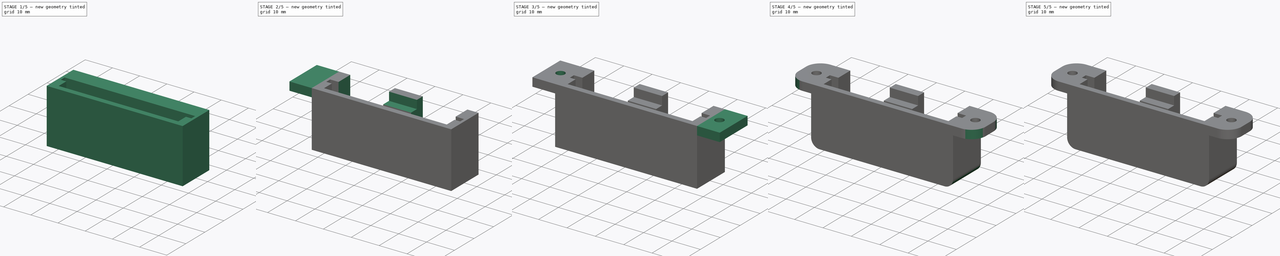
[diagram: build sequence overview — one tinted view per stage of 5, left to right]
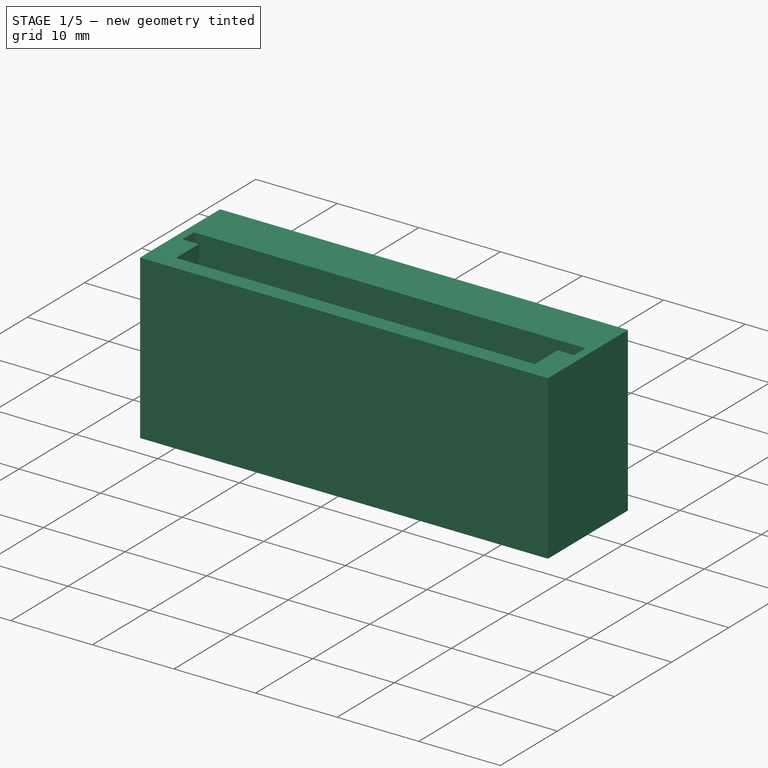
[diagram: stage 1 of 5 — iso view after this stage's code; geometry added in this stage tinted green]
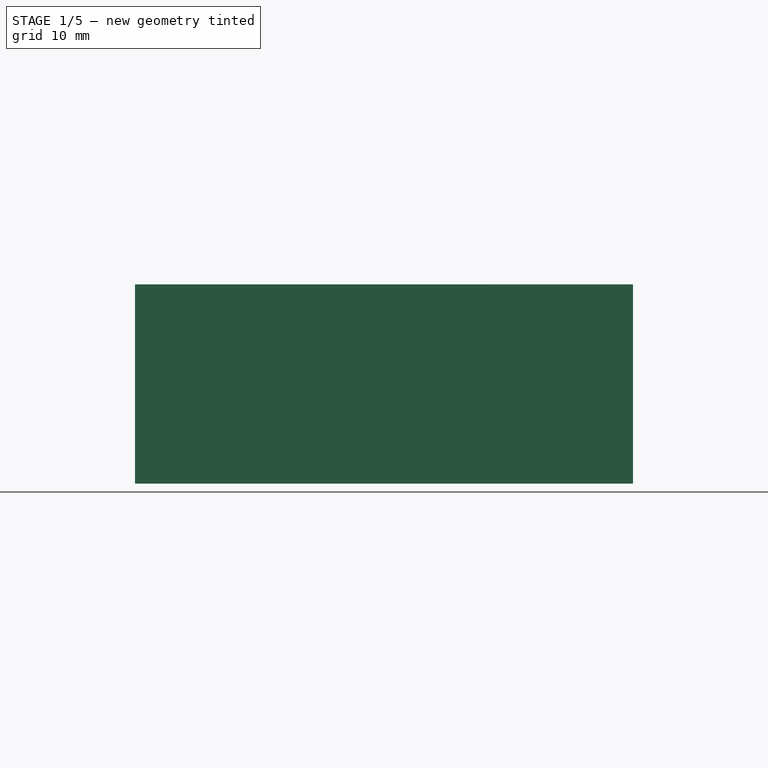
[diagram: stage 1 of 5 — front view after this stage's code; geometry added in this stage tinted green]
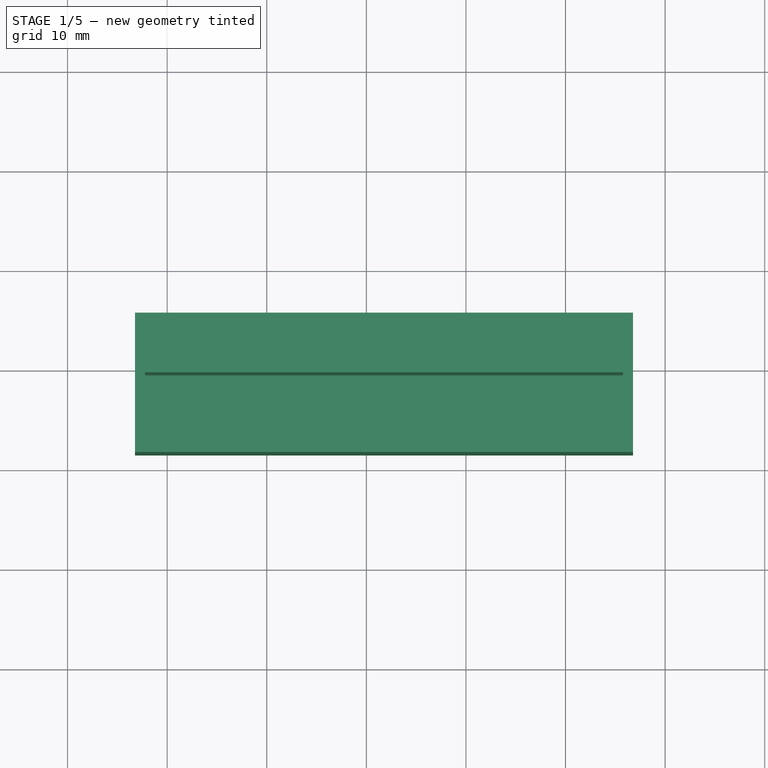
[diagram: stage 1 of 5 — top view after this stage's code; geometry added in this stage tinted green]
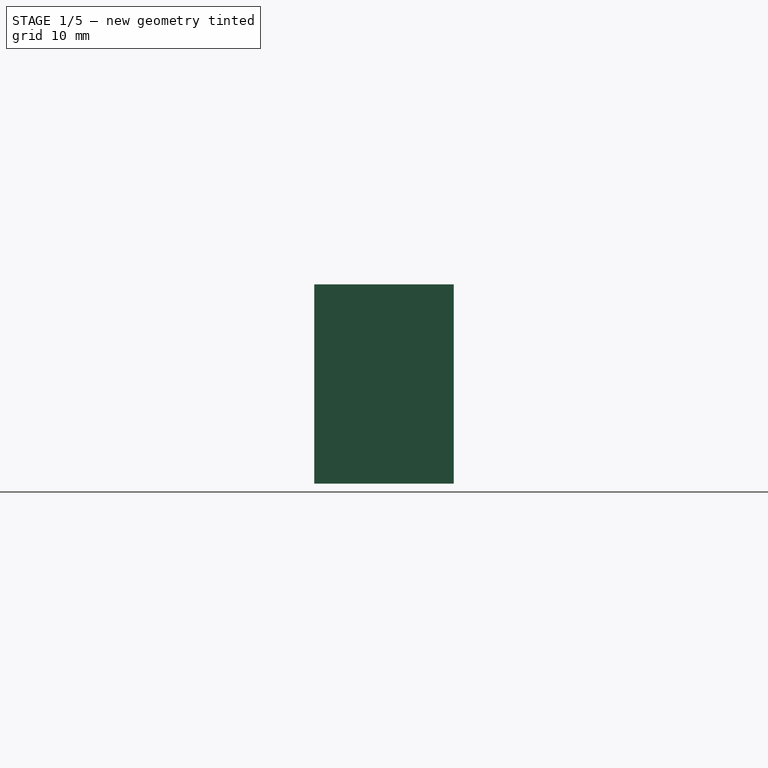
[diagram: stage 1 of 5 — right view after this stage's code; geometry added in this stage tinted green]
FCSTD DOCUMENT  (FreeCAD 0.18R16131 (Git))
Label: UltraHolder
License: All rights reserved
LicenseURL: http://en.wikipedia.org/wiki/All_rights_reserved
objects: Sketcher::SketchObject×9, PartDesign::Pocket×7, PartDesign::Fillet×6, PartDesign::Pad×3, PartDesign::Body×1
note: 36 computed .brp shape members not serialized (recipe doc carries the construction recipe); baked Part::Feature solids carry a one-line shape summary decoded from their .brp

FEATURE [Sketcher::SketchObject] Sketch
  MapMode = 5
  Support = -> [XY_Plane]
  sketch-geometry (4):
    g0: LineSegment StartX=-23.2268 StartY=15.5177 StartZ=0 EndX=26.7732 EndY=15.5177 EndZ=0
    g1: LineSegment StartX=26.7732 StartY=15.5177 StartZ=0 EndX=26.7732 EndY=1.51767 EndZ=0
    g2: LineSegment StartX=26.7732 StartY=1.51767 StartZ=0 EndX=-23.2268 EndY=1.51767 EndZ=0
    g3: LineSegment StartX=-23.2268 StartY=1.51767 StartZ=0 EndX=-23.2268 EndY=15.5177 EndZ=0
  constraints (10):
    c: Coincident(g0,g1)
    c: Coincident(g1,g2)
    c: Coincident(g2,g3)
    c: Coincident(g3,g0)
    c: Horizontal(g0)
    c: Horizontal(g2)
    c: Vertical(g1)
    c: Vertical(g3)
    c: DistanceX(g0,g0) = 50
    c: DistanceY(g3,g3) = 14
FEATURE [PartDesign::Pad] Pad
  Length = 20
  Length2 = 100
  Profile = -> Sketch
  Type = 0
FEATURE [Sketcher::SketchObject] Sketch001
  ExternalGeometry = -> [Pad]
  MapMode = 5
  Placement = pos=(0,0,20) rot=(0,0,1;0rad)
  Support = -> [Pad]
  sketch-geometry (4):
    g0: LineSegment StartX=-22.2268 StartY=9.51767 StartZ=0 EndX=25.7732 EndY=9.51767 EndZ=0
    g1: LineSegment StartX=25.7732 StartY=9.51767 StartZ=0 EndX=25.7732 EndY=7.51767 EndZ=0
    g2: LineSegment StartX=25.7732 StartY=7.51767 StartZ=0 EndX=-22.2268 EndY=7.51767 EndZ=0
    g3: LineSegment StartX=-22.2268 StartY=7.51767 StartZ=0 EndX=-22.2268 EndY=9.51767 EndZ=0
  constraints (12):
    c: Coincident(g0,g1)
    c: Coincident(g1,g2)
    c: Coincident(g2,g3)
    c: Coincident(g3,g0)
    c: Horizontal(g0)
    c: Horizontal(g2)
    c: Vertical(g1)
    c: Vertical(g3)
    c: DistanceX(g-5,g2) = 1
    c: DistanceX(g1,g-5) = 1
    c: DistanceY(g-5,g2) = 6
    c: DistanceY(g3,g3) = 2
FEATURE [PartDesign::Pocket] Pocket
  BaseFeature = -> Pad
  Length = 18
  Length2 = 100
  Profile = -> Sketch001
  Type = 0
FEATURE [Sketcher::SketchObject] Sketch002
  ExternalGeometry = -> [Pocket]
  MapMode = 5
  Placement = pos=(0,0,20) rot=(0,0,1;0rad)
  Support = -> [Pocket]
  sketch-geometry (4):
    g0: LineSegment StartX=-20.2268 StartY=7.51767 StartZ=0 EndX=23.7732 EndY=7.51767 EndZ=0
    g1: LineSegment StartX=23.7732 StartY=7.51767 StartZ=0 EndX=23.7732 EndY=3.51767 EndZ=0
    g2: LineSegment StartX=23.7732 StartY=3.51767 StartZ=0 EndX=-20.2268 EndY=3.51767 EndZ=0
    g3: LineSegment StartX=-20.2268 StartY=3.51767 StartZ=0 EndX=-20.2268 EndY=7.51767 EndZ=0
  constraints (12):
    c: Coincident(g0,g1)
    c: Coincident(g1,g2)
    c: Coincident(g2,g3)
    c: Coincident(g3,g0)
    c: Horizontal(g0)
    c: Horizontal(g2)
    c: Vertical(g1)
    c: Vertical(g3)
    c: PointOnObject(g0,g-3)
    c: DistanceX(g-3,g0) = 2
    c: DistanceX(g0,g-3) = 2
    c: DistanceY(g1,g1) = 4
FEATURE [PartDesign::Pocket] Pocket001
  BaseFeature = -> Pocket
  Length = 16
  Length2 = 100
  Profile = -> Sketch002
  Type = 0
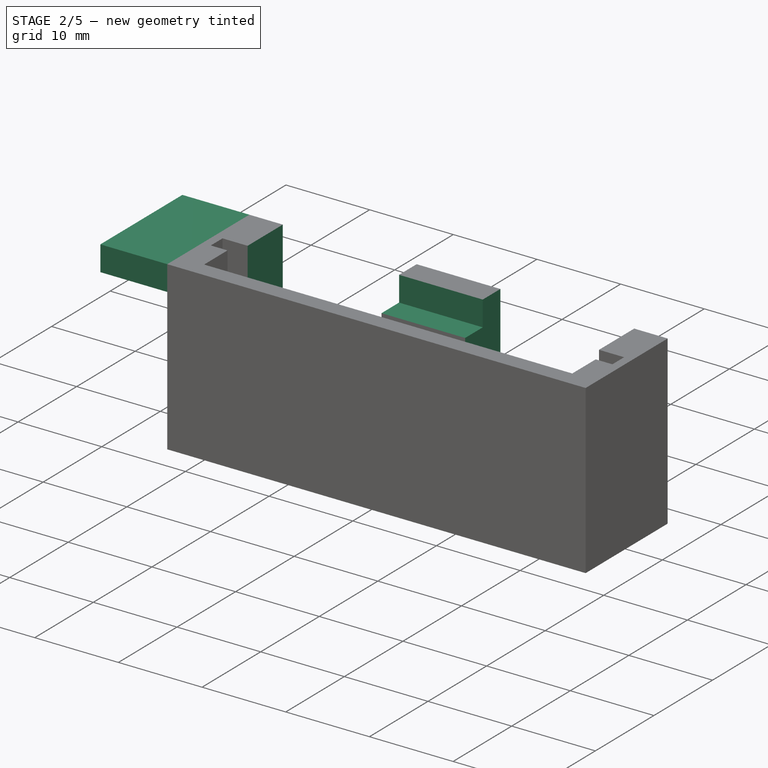
[diagram: stage 2 of 5 — iso view after this stage's code; geometry added in this stage tinted green]
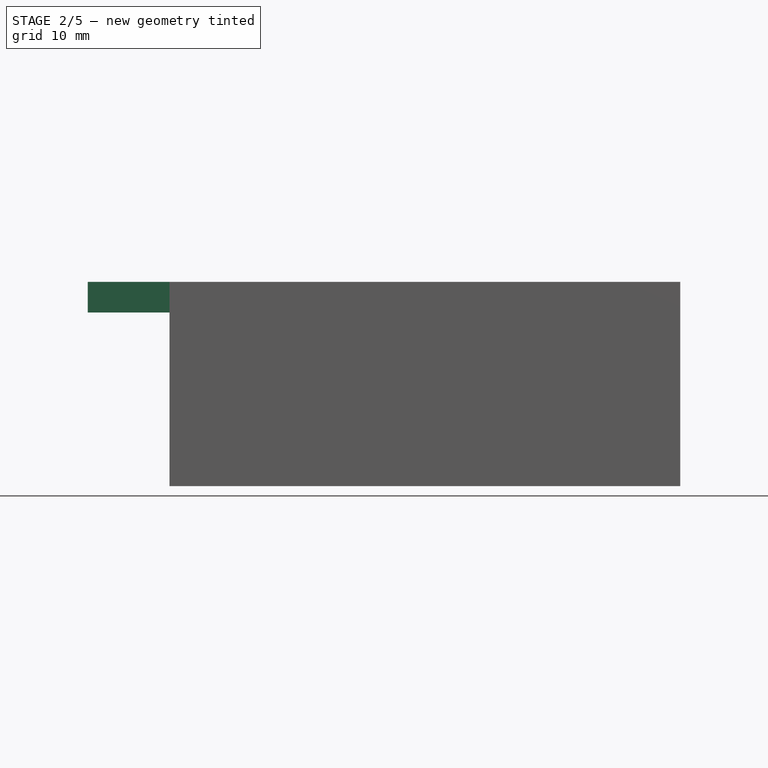
[diagram: stage 2 of 5 — front view after this stage's code; geometry added in this stage tinted green]
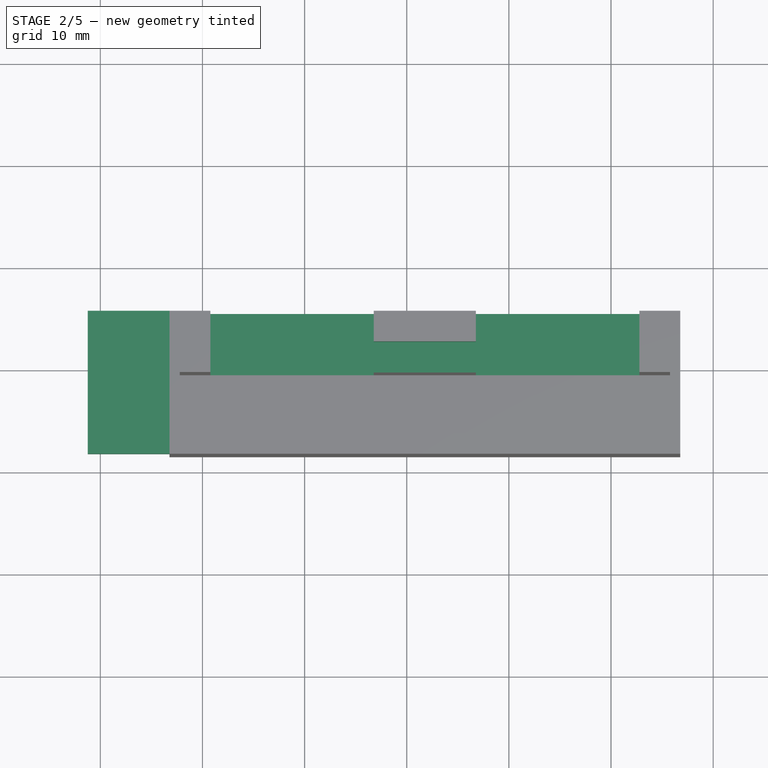
[diagram: stage 2 of 5 — top view after this stage's code; geometry added in this stage tinted green]
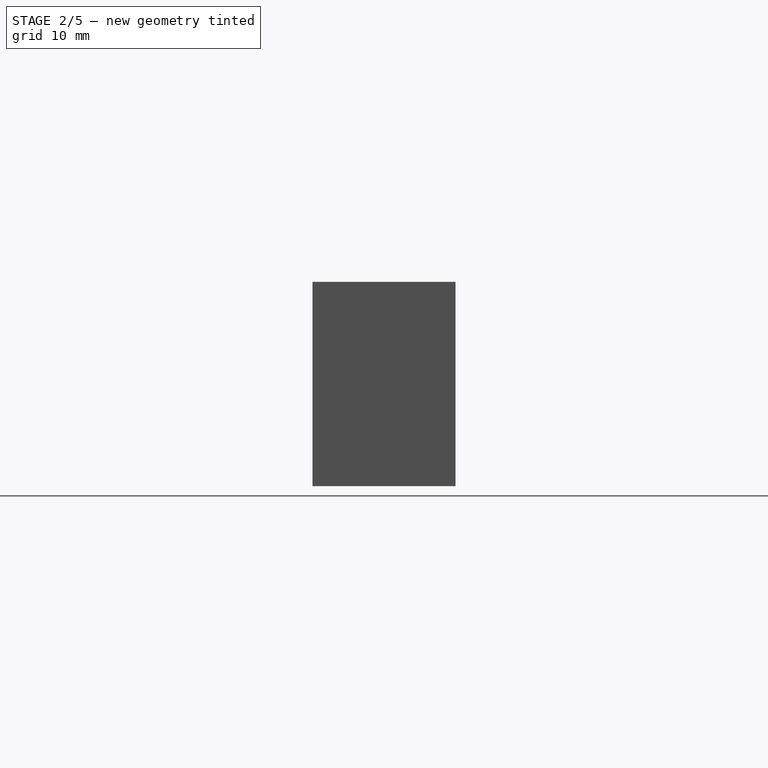
[diagram: stage 2 of 5 — right view after this stage's code; geometry added in this stage tinted green]
FEATURE [Sketcher::SketchObject] Sketch003
  ExternalGeometry = -> [Pocket001]
  MapMode = 5
  Placement = pos=(0,0,20) rot=(0,0,1;0rad)
  Support = -> [Pocket001]
  sketch-geometry (8):
    g0: LineSegment StartX=-19.2268 StartY=15.5177 StartZ=0 EndX=-3.22679 EndY=15.5177 EndZ=0
    g1: LineSegment StartX=-3.22679 StartY=15.5177 StartZ=0 EndX=-3.22679 EndY=9.51767 EndZ=0
    g2: LineSegment StartX=-3.22679 StartY=9.51767 StartZ=0 EndX=-19.2268 EndY=9.51767 EndZ=0
    g3: LineSegment StartX=-19.2268 StartY=9.51767 StartZ=0 EndX=-19.2268 EndY=15.5177 EndZ=0
    g4: LineSegment StartX=6.77321 StartY=15.5177 StartZ=0 EndX=22.7732 EndY=15.5177 EndZ=0
    g5: LineSegment StartX=22.7732 StartY=15.5177 StartZ=0 EndX=22.7732 EndY=9.51767 EndZ=0
    g6: LineSegment StartX=22.7732 StartY=9.51767 StartZ=0 EndX=6.77321 EndY=9.51767 EndZ=0
    g7: LineSegment StartX=6.77321 StartY=9.51767 StartZ=0 EndX=6.77321 EndY=15.5177 EndZ=0
  constraints (24):
    c: Coincident(g0,g1)
    c: Coincident(g1,g2)
    c: Coincident(g2,g3)
    c: Coincident(g3,g0)
    c: Horizontal(g0)
    c: Horizontal(g2)
    c: Vertical(g1)
    c: Vertical(g3)
    c: Coincident(g4,g5)
    c: Coincident(g5,g6)
    c: Coincident(g6,g7)
    c: Coincident(g7,g4)
    c: Horizontal(g4)
    c: Horizontal(g6)
    c: Vertical(g5)
    c: Vertical(g7)
    c: PointOnObject(g0,g-3)
    c: PointOnObject(g2,g-4)
    c: PointOnObject(g4,g-3)
    c: PointOnObject(g6,g-4)
    c: DistanceX(g1,g6) = 10
    c: DistanceX(g2,g2) = 16
    c: DistanceX(g6,g5) = 16
    c: DistanceX(g5,g-4) = 3
FEATURE [PartDesign::Pocket] Pocket002
  BaseFeature = -> Pocket001
  Length = 18
  Length2 = 100
  Profile = -> Sketch003
  Type = 0
FEATURE [Sketcher::SketchObject] Sketch004
  ExternalGeometry = -> [Pocket002]
  MapMode = 5
  Placement = pos=(0,0,20) rot=(0,0,1;0rad)
  Support = -> [Pocket002]
  sketch-geometry (4):
    g0: LineSegment StartX=-3.22679 StartY=12.5177 StartZ=0 EndX=6.77321 EndY=12.5177 EndZ=0
    g1: LineSegment StartX=6.77321 StartY=12.5177 StartZ=0 EndX=6.77321 EndY=9.51767 EndZ=0
    g2: LineSegment StartX=6.77321 StartY=9.51767 StartZ=0 EndX=-3.22679 EndY=9.51767 EndZ=0
    g3: LineSegment StartX=-3.22679 StartY=9.51767 StartZ=0 EndX=-3.22679 EndY=12.5177 EndZ=0
  constraints (10):
    c: Coincident(g0,g1)
    c: Coincident(g1,g2)
    c: Coincident(g2,g3)
    c: Coincident(g3,g0)
    c: Horizontal(g0)
    c: Vertical(g1)
    c: Vertical(g3)
    c: Coincident(g2,g-6)
    c: Coincident(g1,g-5)
    c: DistanceY(g1,g1) = 3
FEATURE [PartDesign::Pocket] Pocket003
  BaseFeature = -> Pocket002
  Length = 3
  Length2 = 100
  Profile = -> Sketch004
  Type = 0
FEATURE [Sketcher::SketchObject] Sketch005
  ExternalGeometry = -> [Pocket003]
  MapMode = 5
  Placement = pos=(-23.2268,0,0) rot=(0.57735,-0.57735,-0.57735;2.0944rad)
  Support = -> [Pocket003]
  sketch-geometry (4):
    g0: LineSegment StartX=-15.5177 StartY=20 StartZ=0 EndX=-1.51767 EndY=20 EndZ=0
    g1: LineSegment StartX=-1.51767 StartY=20 StartZ=0 EndX=-1.51767 EndY=17 EndZ=0
    g2: LineSegment StartX=-1.51767 StartY=17 StartZ=0 EndX=-15.5177 EndY=17 EndZ=0
    g3: LineSegment StartX=-15.5177 StartY=17 StartZ=0 EndX=-15.5177 EndY=20 EndZ=0
  constraints (10):
    c: Coincident(g0,g1)
    c: Coincident(g1,g2)
    c: Coincident(g2,g3)
    c: Coincident(g3,g0)
    c: Horizontal(g2)
    c: Vertical(g1)
    c: Vertical(g3)
    c: Coincident(g0,g-4)
    c: Coincident(g0,g-5)
    c: DistanceY(g3,g3) = 3
FEATURE [PartDesign::Pad] Pad001
  BaseFeature = -> Pocket003
  Length = 8
  Length2 = 100
  Profile = -> Sketch005
  Type = 0
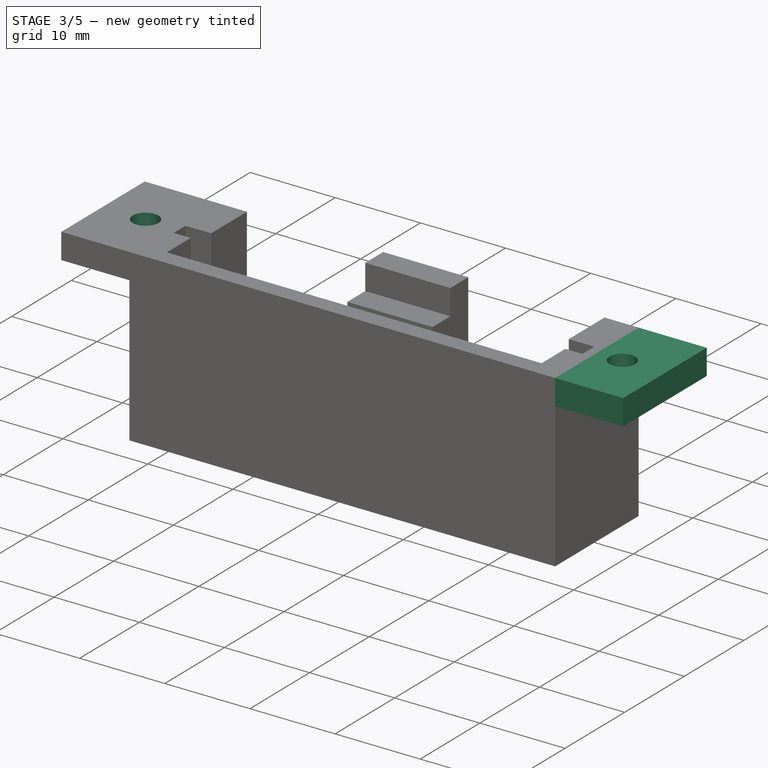
[diagram: stage 3 of 5 — iso view after this stage's code; geometry added in this stage tinted green]
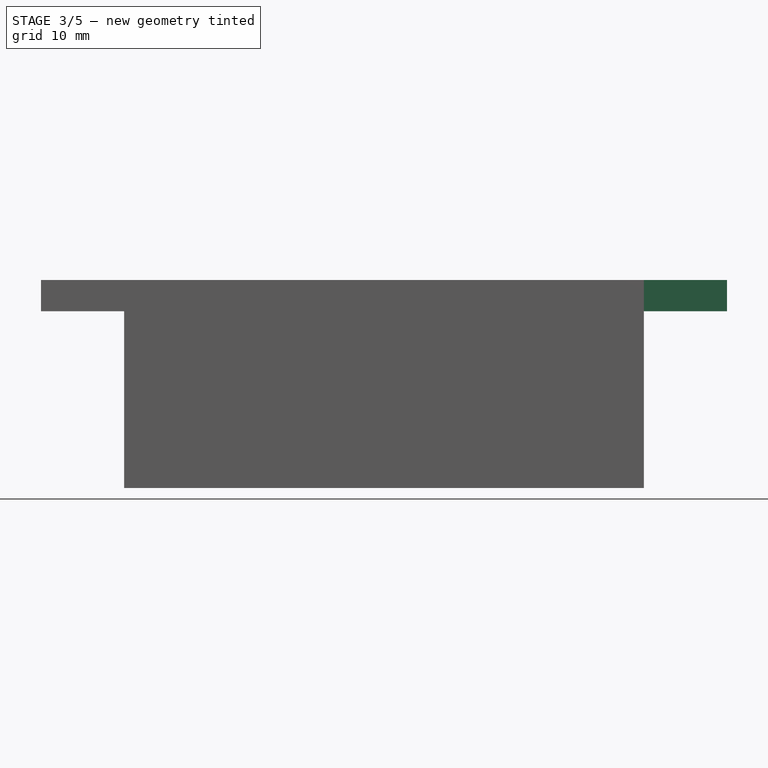
[diagram: stage 3 of 5 — front view after this stage's code; geometry added in this stage tinted green]
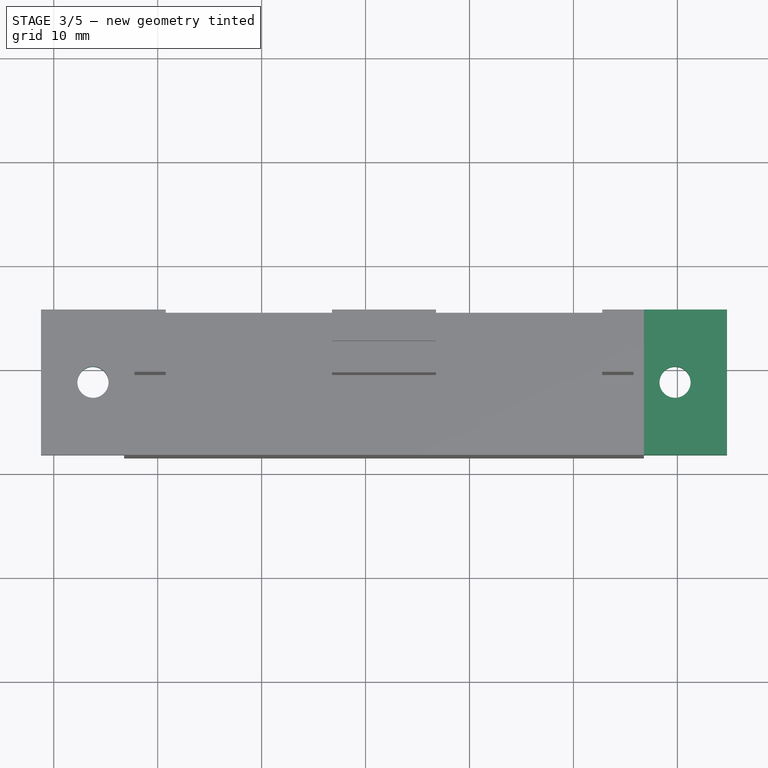
[diagram: stage 3 of 5 — top view after this stage's code; geometry added in this stage tinted green]
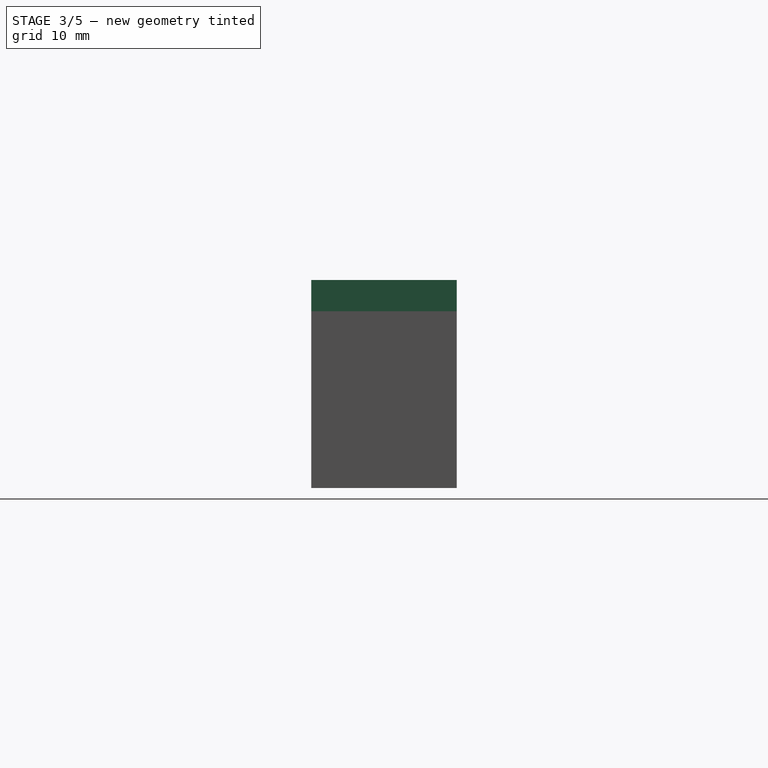
[diagram: stage 3 of 5 — right view after this stage's code; geometry added in this stage tinted green]
FEATURE [Sketcher::SketchObject] Sketch006
  ExternalGeometry = -> [Pad001]
  MapMode = 5
  Placement = pos=(26.7732,0,0) rot=(0.57735,0.57735,0.57735;2.0944rad)
  Support = -> [Pad001]
  sketch-geometry (4):
    g0: LineSegment StartX=1.51767 StartY=20 StartZ=0 EndX=15.5177 EndY=20 EndZ=0
    g1: LineSegment StartX=15.5177 StartY=20 StartZ=0 EndX=15.5177 EndY=17 EndZ=0
    g2: LineSegment StartX=15.5177 StartY=17 StartZ=0 EndX=1.51767 EndY=17 EndZ=0
    g3: LineSegment StartX=1.51767 StartY=17 StartZ=0 EndX=1.51767 EndY=20 EndZ=0
  constraints (10):
    c: Coincident(g0,g1)
    c: Coincident(g1,g2)
    c: Coincident(g2,g3)
    c: Coincident(g3,g0)
    c: Horizontal(g2)
    c: Vertical(g1)
    c: Vertical(g3)
    c: Coincident(g0,g-4)
    c: Coincident(g0,g-3)
    c: DistanceY(g1,g1) = 3
FEATURE [PartDesign::Pad] Pad002
  BaseFeature = -> Pad001
  Length = 8
  Length2 = 100
  Profile = -> Sketch006
  Type = 0
FEATURE [Sketcher::SketchObject] Sketch007
  ExternalGeometry = -> [Pad002]
  MapMode = 5
  Placement = pos=(0,0,17) rot=(1,0,0;3.14159rad)
  Support = -> [Pad002]
  sketch-geometry (1):
    g0: Circle CenterX=-26.2268 CenterY=-8.51767 CenterZ=0 NormalX=0 NormalY=0 NormalZ=1 AngleXU=0 Radius=1.5
  constraints (3):
    c: DistanceX(g0,g-3) = 4
    c: Radius(g0) = 1.5
    c: DistanceY(g-4,g0) = 7
FEATURE [PartDesign::Pocket] Pocket004
  BaseFeature = -> Pad002
  Length = 3
  Length2 = 100
  Profile = -> Sketch007
  Type = 0
FEATURE [PartDesign::Pocket] Pocket005
  BaseFeature = -> Pocket004
  Length = 3
  Length2 = 100
  Profile = -> Sketch007
  Type = 0
FEATURE [Sketcher::SketchObject] Sketch008
  ExternalGeometry = -> [Pocket005]
  MapMode = 5
  Placement = pos=(0,0,20) rot=(0,0,1;0rad)
  Support = -> [Pocket005]
  sketch-geometry (1):
    g0: Circle CenterX=29.7732 CenterY=8.51767 CenterZ=0 NormalX=0 NormalY=0 NormalZ=1 AngleXU=0 Radius=1.5
  constraints (3):
    c: Radius(g0) = 1.5
    c: DistanceX(g-3,g0) = 4
    c: DistanceY(g-4,g0) = 7
FEATURE [PartDesign::Pocket] Pocket006
  BaseFeature = -> Pocket005
  Length = 3
  Length2 = 100
  Profile = -> Sketch008
  Type = 0
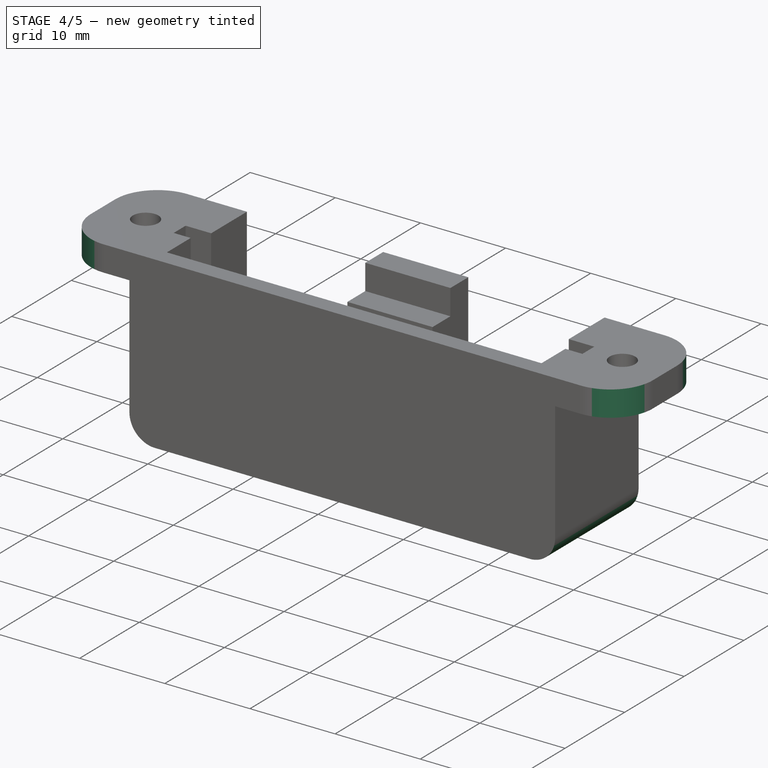
[diagram: stage 4 of 5 — iso view after this stage's code; geometry added in this stage tinted green]
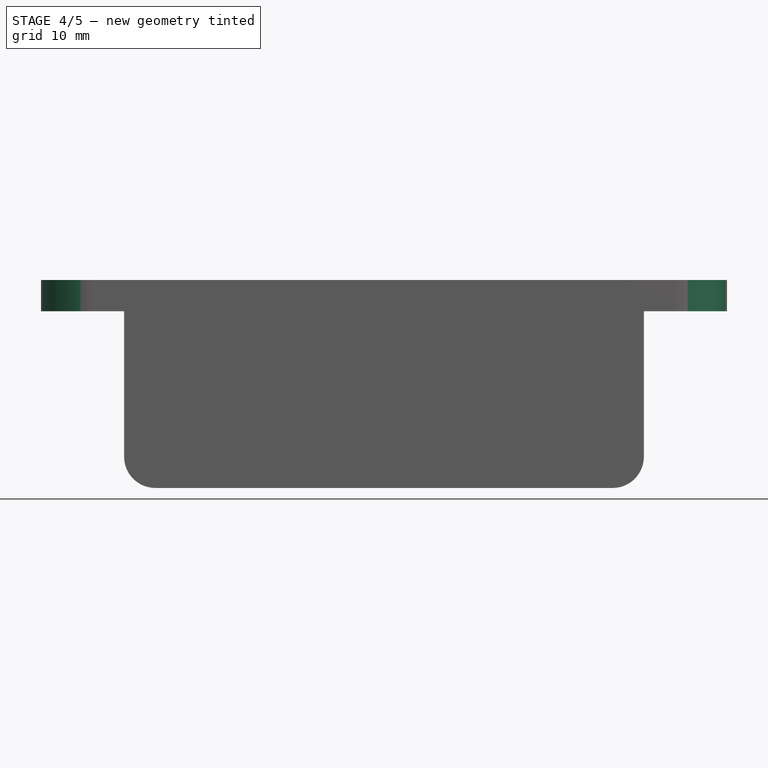
[diagram: stage 4 of 5 — front view after this stage's code; geometry added in this stage tinted green]
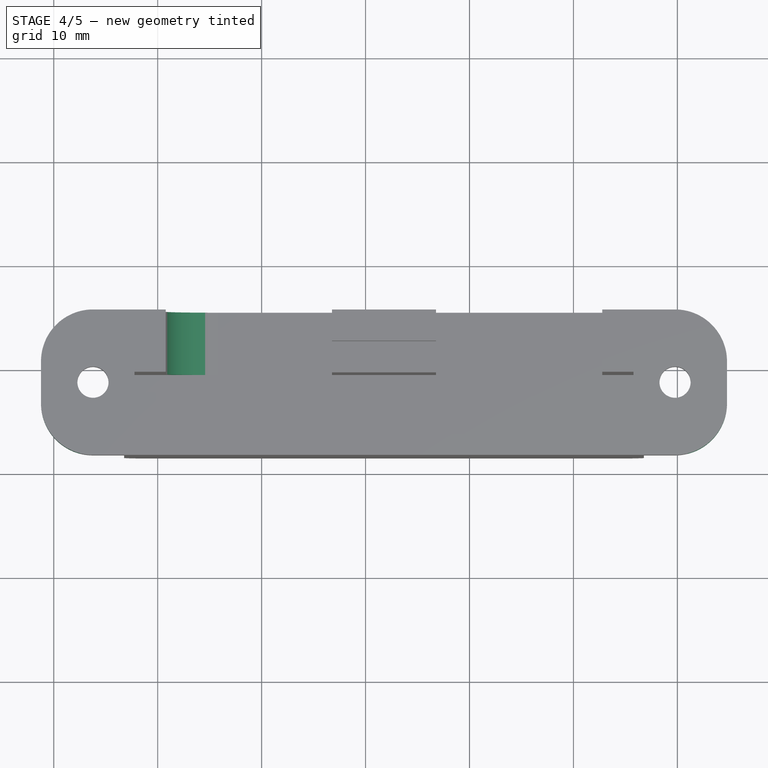
[diagram: stage 4 of 5 — top view after this stage's code; geometry added in this stage tinted green]
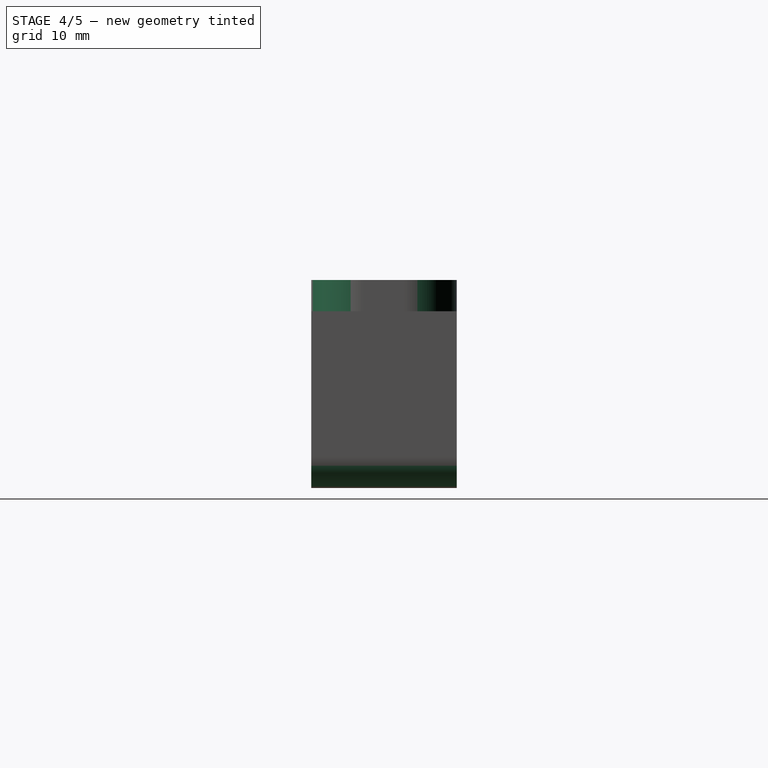
[diagram: stage 4 of 5 — right view after this stage's code; geometry added in this stage tinted green]
FEATURE [PartDesign::Fillet] Fillet
  Base = -> Pocket006 [Edge22,Edge67,Edge94,Edge58]
  BaseFeature = -> Pocket006
  Radius = 5
FEATURE [PartDesign::Fillet] Fillet001
  Base = -> Fillet [Edge50,Edge48]
  BaseFeature = -> Fillet
  Radius = 3
FEATURE [PartDesign::Fillet] Fillet002
  Base = -> Fillet001 [Edge49]
  BaseFeature = -> Fillet001
  Radius = 5
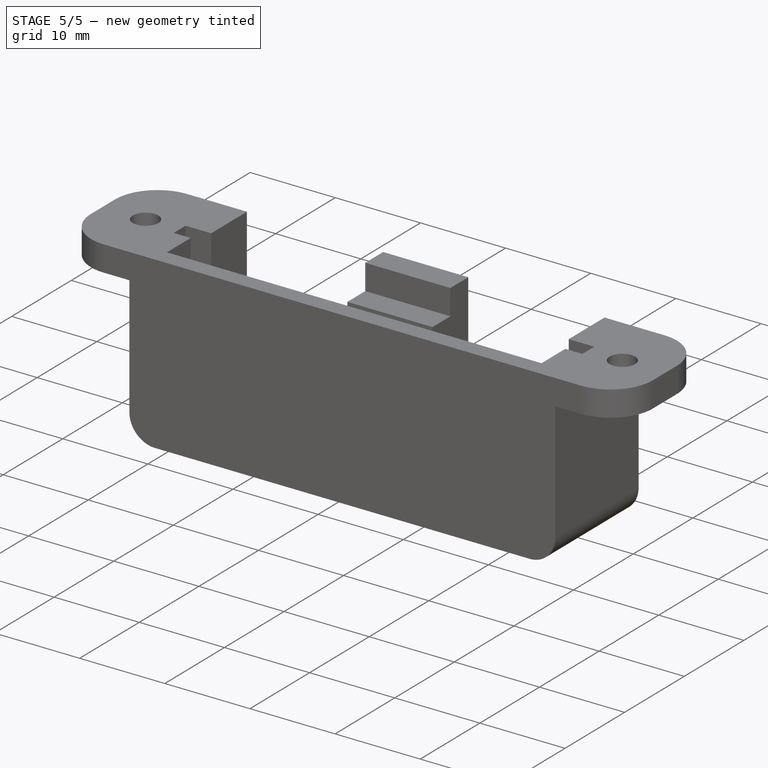
[diagram: stage 5 of 5 — iso view after this stage's code; geometry added in this stage tinted green]
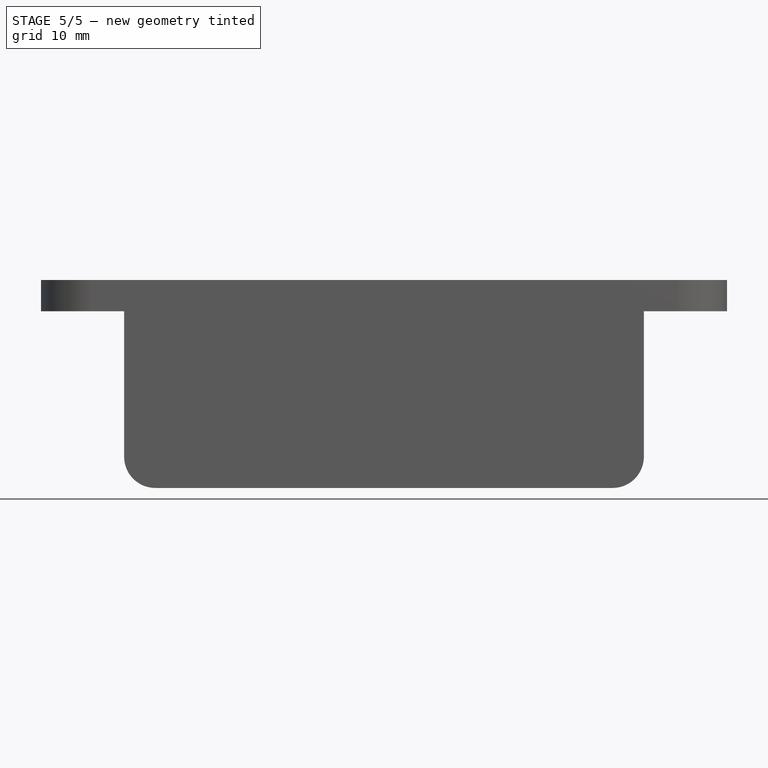
[diagram: stage 5 of 5 — front view after this stage's code; geometry added in this stage tinted green]
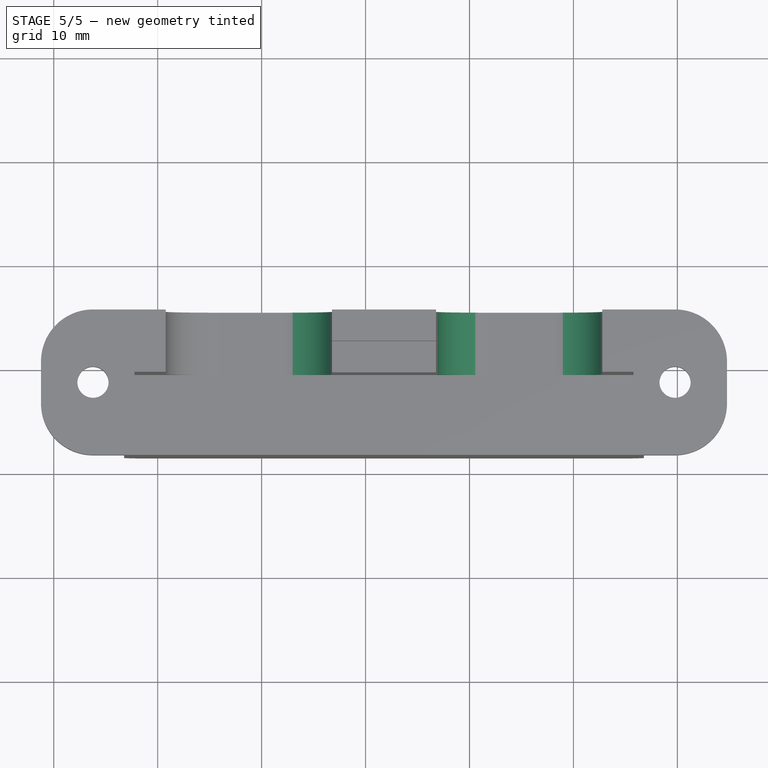
[diagram: stage 5 of 5 — top view after this stage's code; geometry added in this stage tinted green]
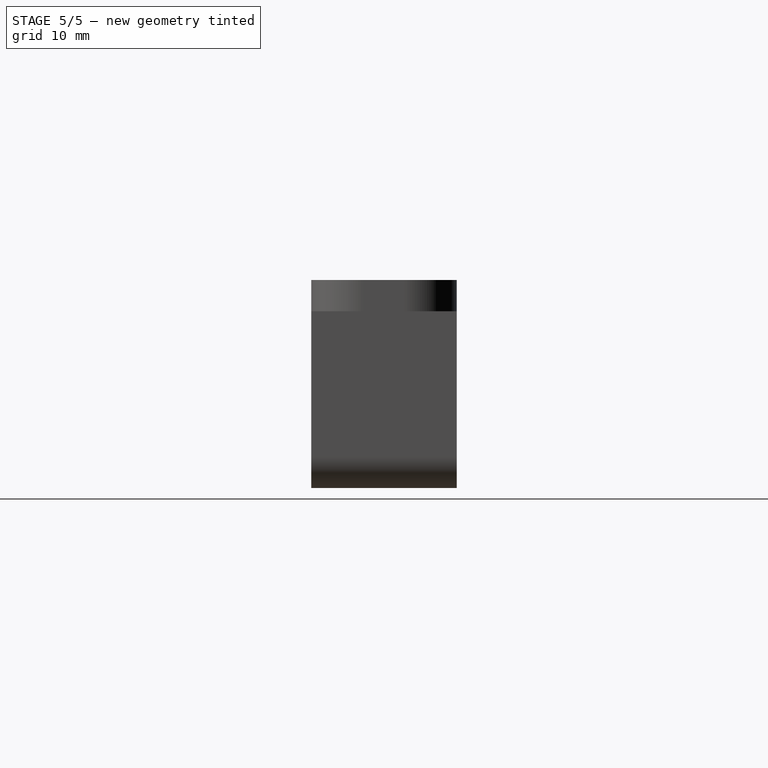
[diagram: stage 5 of 5 — right view after this stage's code; geometry added in this stage tinted green]
FEATURE [PartDesign::Fillet] Fillet003
  Base = -> Fillet002 [Edge36]
  BaseFeature = -> Fillet002
  Radius = 5
FEATURE [PartDesign::Fillet] Fillet004
  Base = -> Fillet003 [Edge54]
  BaseFeature = -> Fillet003
  Radius = 5
FEATURE [PartDesign::Fillet] Fillet005
  Base = -> Fillet004 [Edge22]
  BaseFeature = -> Fillet004
  Radius = 5
FEATURE [PartDesign::Body] Body
  Group = -> [Sketch,Pad,Sketch001,Pocket,Sketch002,Pocket001,Sketch003,Pocket002,Sketch004,Pocket003,Sketch005,Pad001,Sketch006,Pad002,Sketch007,Pocket004,Pocket005,Sketch008,Pocket006,Fillet,Fillet001,Fillet002,Fillet003,Fillet004,Fillet005]
  Origin = -> Origin
  Tip = -> Fillet005
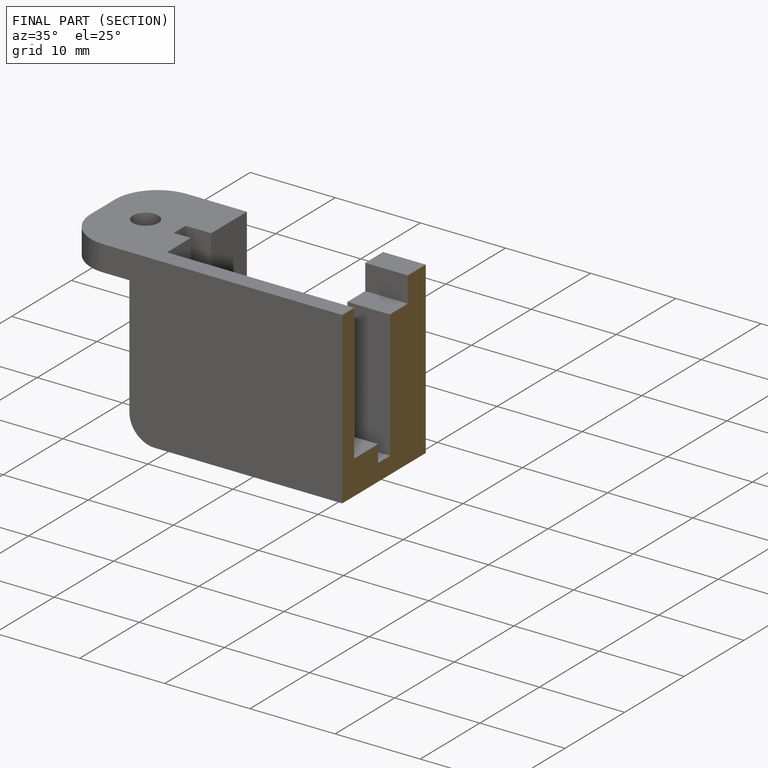
[diagram: finished part — half-section view (interior)]
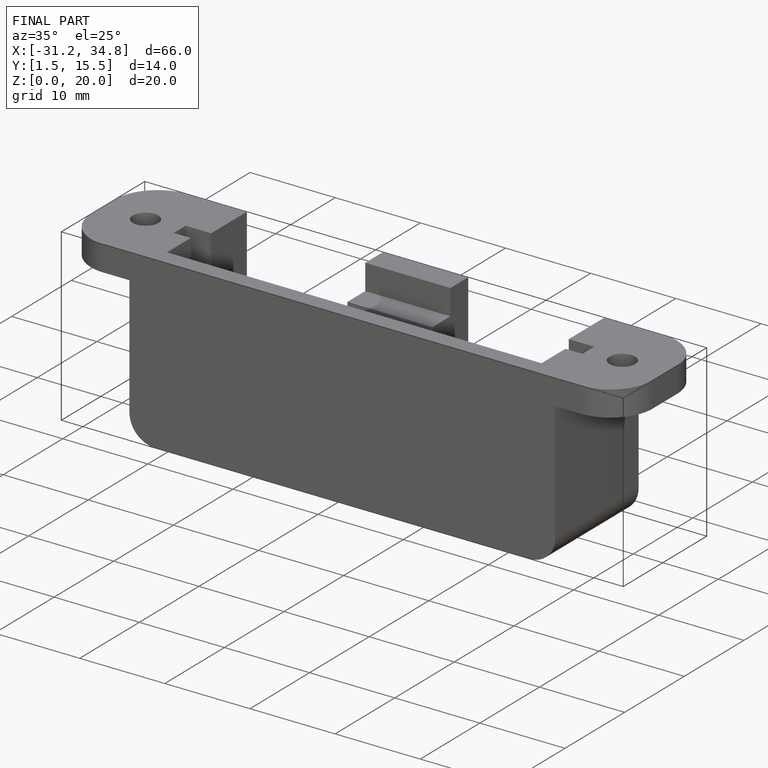
[diagram: finished part — iso view with bounding-box wireframe]
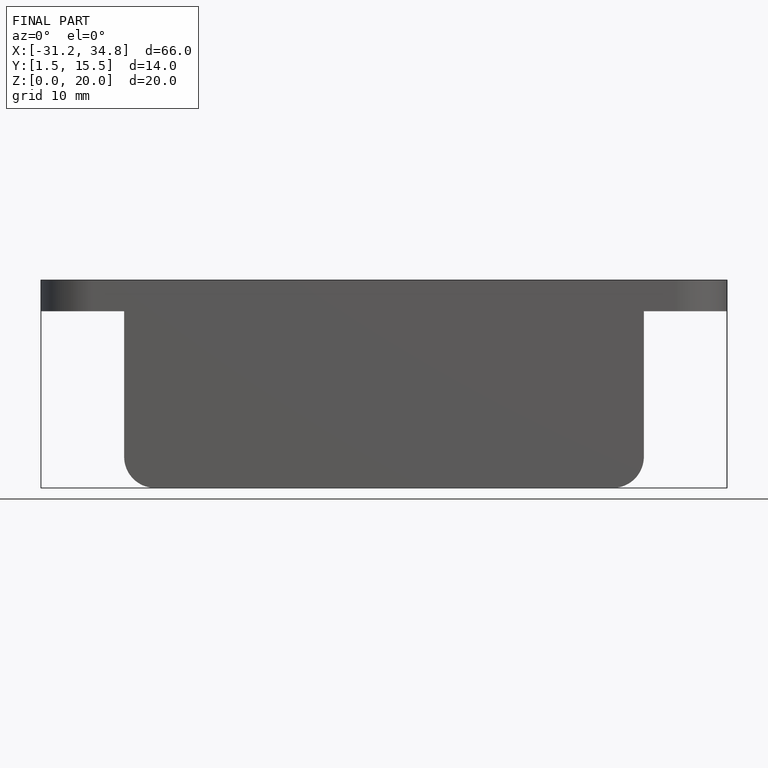
[diagram: finished part — front view with bounding-box wireframe]
